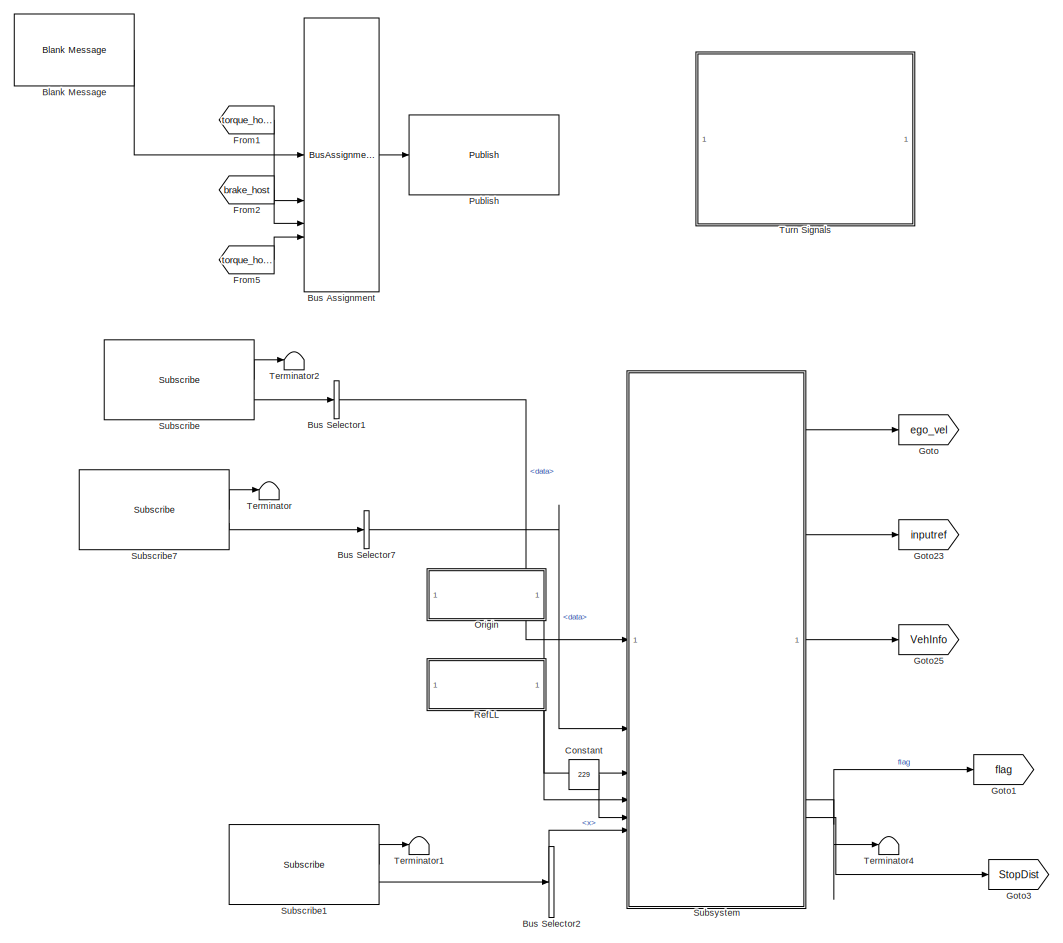
[diagram: root canvas - part 1/2, right side, full height]
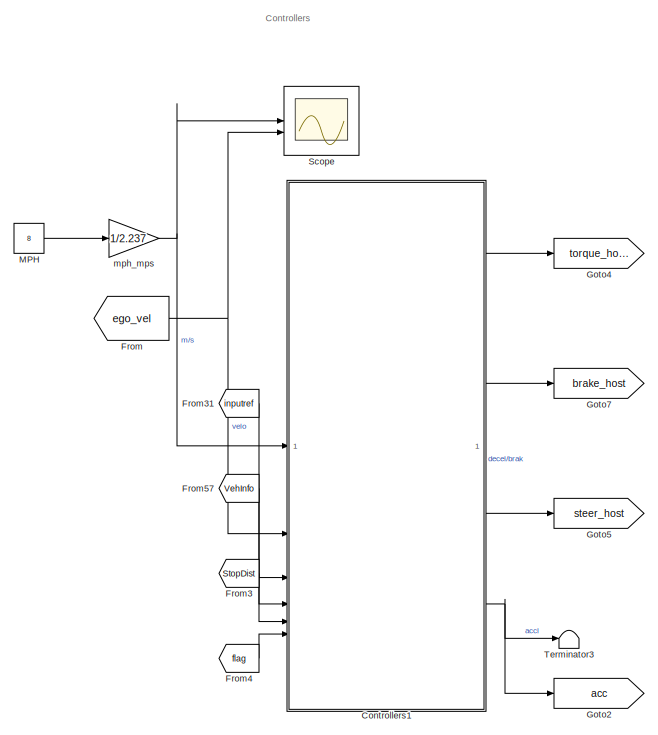
[diagram: root canvas - part 2/2, left side, full height]
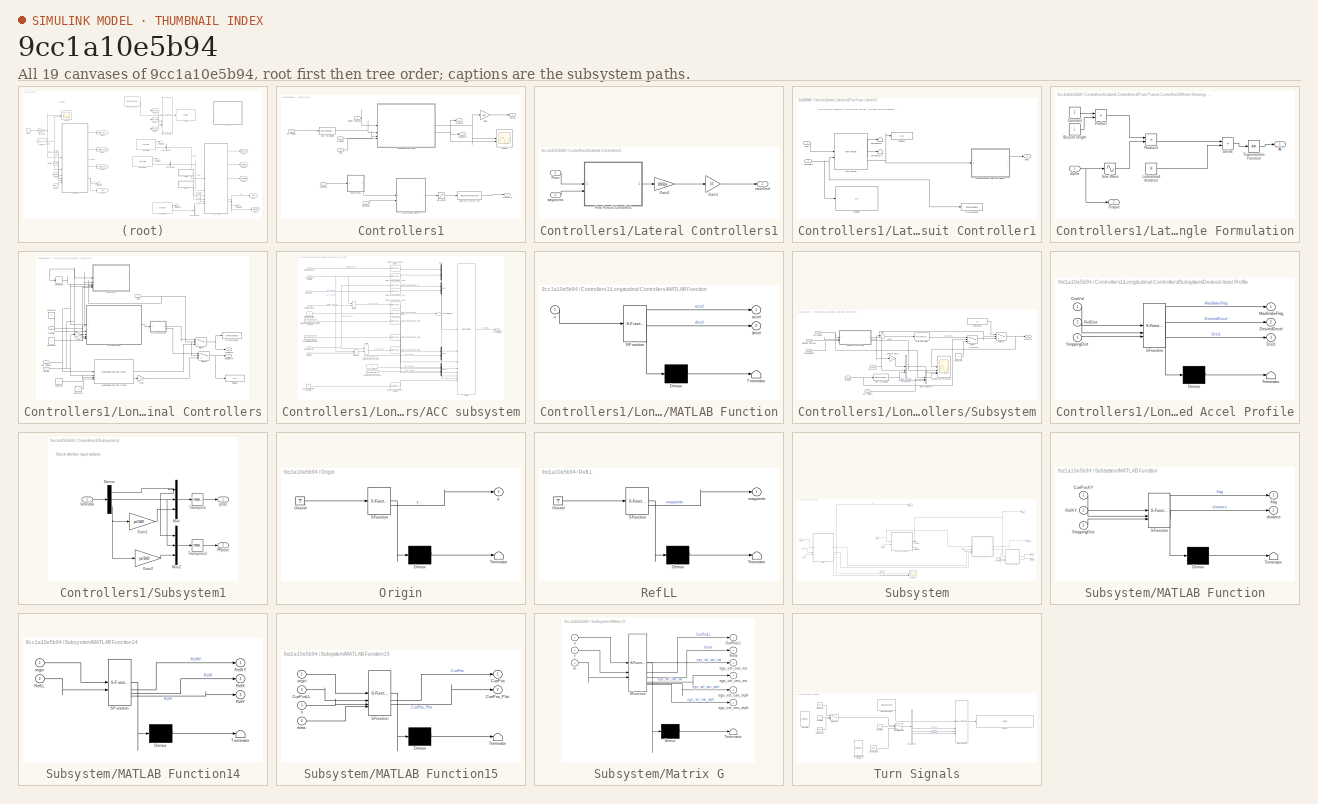
[diagram: thumbnail index - all 19 canvases of the model, root first then tree order]
MODEL slx_9cc1a10e5b94
KIND model
CONFIG AbsTol = auto
CONFIG EnableMultiTasking = off
CONFIG FixedStep = 0.01
CONFIG MaxStep = auto
CONFIG MinStep = auto
CONFIG RelTol = 1e-3
CONFIG SampleTimeConstraint = Unconstrained
CONFIG SolverName = FixedStepAuto
CONFIG StartTime = 0.0
CONFIG StopTime = inf
BLOCK [Reference] Blank Message  REF=ros2lib/Blank Message  (lib defined in slx_3c1549211f48)
  LibrarySourceBlock = roslib/ROS 2/Blank Message
  SourceBlock = ros2lib/Blank Message
  SourceType = ROS2 Blank Message
BLOCK [BusAssignment] Bus Assignment
  AssignedSignals = x,y,z
BLOCK [BusSelector] Bus Selector1
  OutputSignals = data
BLOCK [BusSelector] Bus Selector2
  OutputSignals = x,y
BLOCK [BusSelector] Bus Selector7
  OutputSignals = data
BLOCK [Constant] Constant
  Value = 229
BLOCK [SubSystem] Controllers1
BLOCK [Outport] Controllers1/AccelCmd
  Port = 4
BLOCK [DataTypeConversion] Controllers1/Cast To Double
  OutDataTypeStr = double
  RndMeth = Floor
  SaturateOnIntegerOverflow = off
BLOCK [Inport] Controllers1/CurrVelocity
  Port = 2
BLOCK [Outport] Controllers1/DecelCmd
  Port = 2
BLOCK [DiscreteTransferFcn] Controllers1/Discrete Transfer Fcn
  Denominator = [1 -1.8952 0.90129]
  InputPortMap = u0
  Numerator = [0.0015186 0.0030372 0.0015186]
  SampleTime = 0.01
BLOCK [Gain] Controllers1/Gain2
  Gain = 800
BLOCK [SubSystem] Controllers1/Lateral Controllers1
BLOCK [Gain] Controllers1/Lateral Controllers1/Gain1
  Gain = 16
BLOCK [Gain] Controllers1/Lateral Controllers1/Gain2
  Gain = 180/pi
BLOCK [Inport] Controllers1/Lateral Controllers1/Pose
BLOCK [SubSystem] Controllers1/Lateral Controllers1/Pure Pursuit Controller1
BLOCK [Display] Controllers1/Lateral Controllers1/Pure Pursuit Controller1/Display
  Decimation = 1
BLOCK [Display] Controllers1/Lateral Controllers1/Pure Pursuit Controller1/Display1
  Decimation = 1
BLOCK [Inport] Controllers1/Lateral Controllers1/Pure Pursuit Controller1/Pose
BLOCK [Reference] Controllers1/Lateral Controllers1/Pure Pursuit Controller1/Pure Pursuit  REF=robotalgslib/Pure Pursuit
  SourceBlock = robotalgslib/Pure Pursuit
  SourceType = nav.slalgs.internal.PurePursuit
BLOCK [Terminator] Controllers1/Lateral Controllers1/Pure Pursuit Controller1/Terminator6
BLOCK [Terminator] Controllers1/Lateral Controllers1/Pure Pursuit Controller1/Terminator7
BLOCK [ToWorkspace] Controllers1/Lateral Controllers1/Pure Pursuit Controller1/To Workspace
  FixptAsFi = on
  MaxDataPoints = inf
  SampleTime = -1
  SaveFormat = Timeseries
  VariableName = simout
BLOCK [Inport] Controllers1/Lateral Controllers1/Pure Pursuit Controller1/Waypoints
  Port = 2
BLOCK [SubSystem] Controllers1/Lateral Controllers1/Pure Pursuit Controller1/Wheel Steering Angle Formulation
BLOCK [Outport] Controllers1/Lateral Controllers1/Pure Pursuit Controller1/Wheel Steering Angle Formulation/Al
BLOCK [Constant] Controllers1/Lateral Controllers1/Pure Pursuit Controller1/Wheel Steering Angle Formulation/Bicycle length
  Value = L
BLOCK [Constant] Controllers1/Lateral Controllers1/Pure Pursuit Controller1/Wheel Steering Angle Formulation/Constant
  Value = 2
BLOCK [Product] Controllers1/Lateral Controllers1/Pure Pursuit Controller1/Wheel Steering Angle Formulation/Divide
  Inputs = */
BLOCK [Constant] Controllers1/Lateral Controllers1/Pure Pursuit Controller1/Wheel Steering Angle Formulation/Lookahead distance
  Value = ld
BLOCK [Outport] Controllers1/Lateral Controllers1/Pure Pursuit Controller1/Wheel Steering Angle Formulation/Output
  Port = 2
BLOCK [Product] Controllers1/Lateral Controllers1/Pure Pursuit Controller1/Wheel Steering Angle Formulation/Product
BLOCK [Product] Controllers1/Lateral Controllers1/Pure Pursuit Controller1/Wheel Steering Angle Formulation/Product1
BLOCK [Sin] Controllers1/Lateral Controllers1/Pure Pursuit Controller1/Wheel Steering Angle Formulation/Sine Wave
  SampleTime = 0
  TimeSource = Use external signal
BLOCK [Trigonometry] Controllers1/Lateral Controllers1/Pure Pursuit Controller1/Wheel Steering Angle Formulation/Trigonometric Function
  Operator = atan
BLOCK [Inport] Controllers1/Lateral Controllers1/Pure Pursuit Controller1/Wheel Steering Angle Formulation/alpha
  NameLocation = top
BLOCK [Outport] Controllers1/Lateral Controllers1/Pure Pursuit Controller1/delta
BLOCK [Outport] Controllers1/Lateral Controllers1/steerCmd
BLOCK [Inport] Controllers1/Lateral Controllers1/waypoints
  Port = 2
BLOCK [SubSystem] Controllers1/Longitudinal Controllers
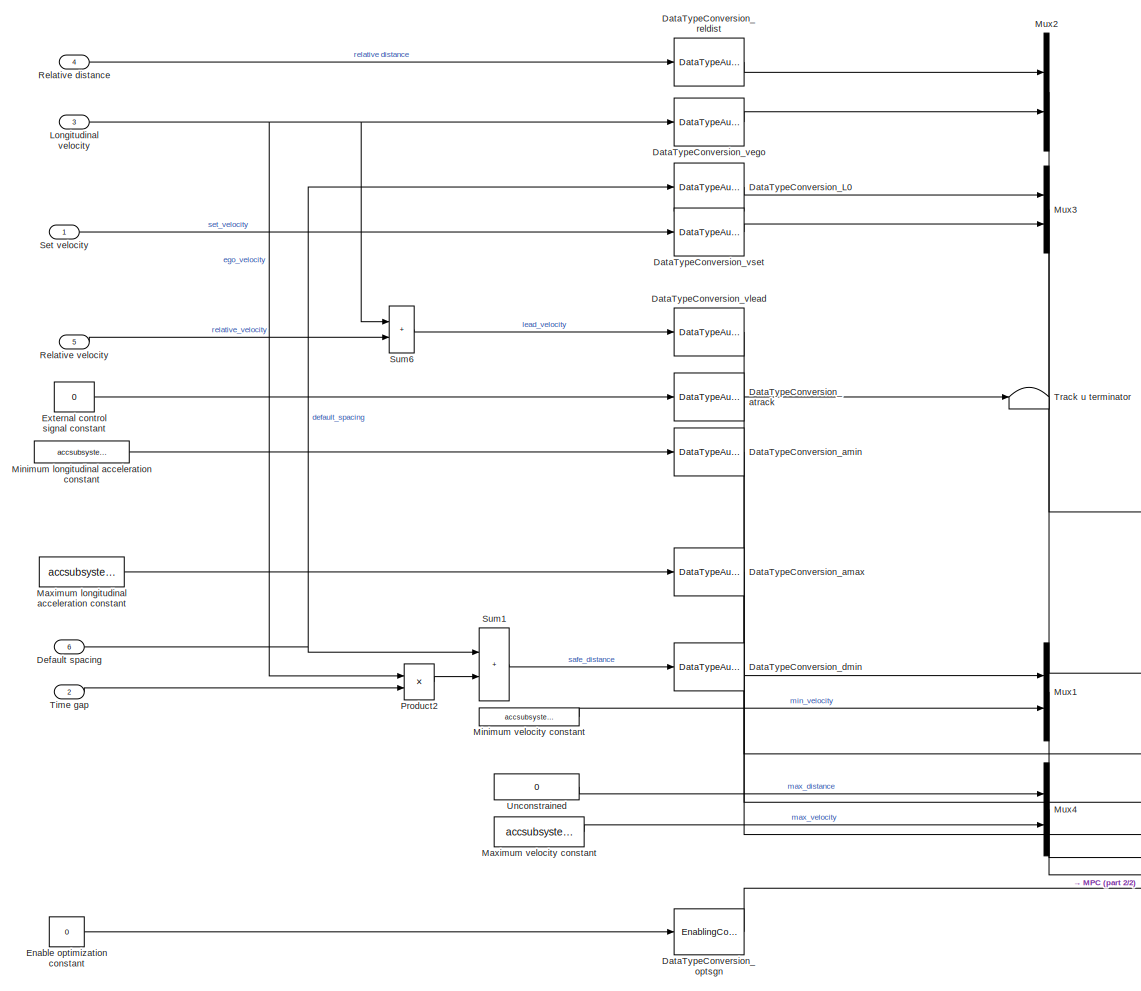
[diagram: Controllers1/Longitudinal Controllers/ACC subsystem - part 1/2, most of the canvas]
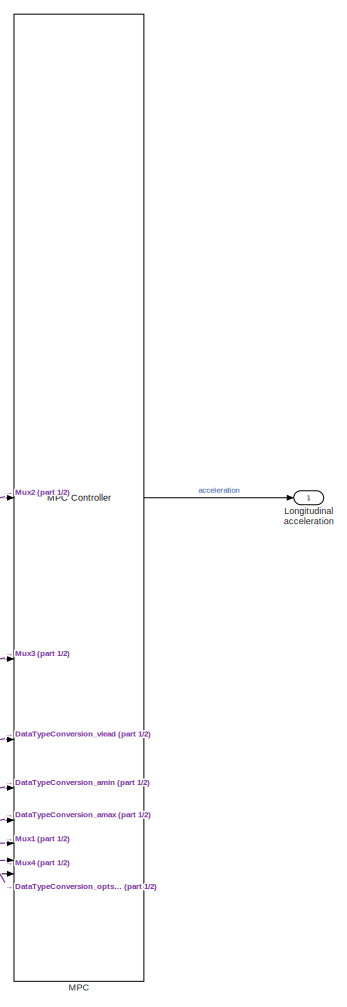
[diagram: Controllers1/Longitudinal Controllers/ACC subsystem - part 2/2, right side, full height]
BLOCK [SubSystem] Controllers1/Longitudinal Controllers/ACC subsystem
  LibrarySourceBlock = mpclib/Automated Driving/Adaptive Cruise Control System
BLOCK [Reference] Controllers1/Longitudinal Controllers/ACC subsystem/DataTypeConversion_L0  REF=mpcsigdimcheck_private/DataTypeAutoConversion
  LibrarySourceBlock = mpclib/Automated Driving/Adaptive Cruise Control System/DataTypeConversion_L0
  SourceBlock = mpcsigdimcheck_private/DataTypeAutoConversion
  SourceType = MPCDataTypeAutoConversion
BLOCK [Reference] Controllers1/Longitudinal Controllers/ACC subsystem/DataTypeConversion_amax  REF=mpcsigdimcheck_private/DataTypeAutoConversion
  LibrarySourceBlock = mpclib/Automated Driving/Adaptive Cruise Control System/DataTypeConversion_amax
  SourceBlock = mpcsigdimcheck_private/DataTypeAutoConversion
  SourceType = MPCDataTypeAutoConversion
BLOCK [Reference] Controllers1/Longitudinal Controllers/ACC subsystem/DataTypeConversion_amin  REF=mpcsigdimcheck_private/DataTypeAutoConversion
  LibrarySourceBlock = mpclib/Automated Driving/Adaptive Cruise Control System/DataTypeConversion_amin
  SourceBlock = mpcsigdimcheck_private/DataTypeAutoConversion
  SourceType = MPCDataTypeAutoConversion
BLOCK [Reference] Controllers1/Longitudinal Controllers/ACC subsystem/DataTypeConversion_atrack  REF=mpcsigdimcheck_private/DataTypeAutoConversion
  LibrarySourceBlock = mpclib/Automated Driving/Adaptive Cruise Control System/DataTypeConversion_atrack
  SourceBlock = mpcsigdimcheck_private/DataTypeAutoConversion
  SourceType = MPCDataTypeAutoConversion
BLOCK [Reference] Controllers1/Longitudinal Controllers/ACC subsystem/DataTypeConversion_dmin  REF=mpcsigdimcheck_private/DataTypeAutoConversion
  LibrarySourceBlock = mpclib/Automated Driving/Adaptive Cruise Control System/DataTypeConversion_dmin
  SourceBlock = mpcsigdimcheck_private/DataTypeAutoConversion
  SourceType = MPCDataTypeAutoConversion
BLOCK [Reference] Controllers1/Longitudinal Controllers/ACC subsystem/DataTypeConversion_optsgn  REF=mpcsigdimcheck_private/EnablingConversion
  LibrarySourceBlock = mpclib/Automated Driving/Adaptive Cruise Control System/DataTypeConversion_optsgn
  SourceBlock = mpcsigdimcheck_private/EnablingConversion
  SourceType = SubSystem
BLOCK [Reference] Controllers1/Longitudinal Controllers/ACC subsystem/DataTypeConversion_reldist  REF=mpcsigdimcheck_private/DataTypeAutoConversion
  LibrarySourceBlock = mpclib/Automated Driving/Adaptive Cruise Control System/DataTypeConversion_reldist
  SourceBlock = mpcsigdimcheck_private/DataTypeAutoConversion
  SourceType = MPCDataTypeAutoConversion
BLOCK [Reference] Controllers1/Longitudinal Controllers/ACC subsystem/DataTypeConversion_vego  REF=mpcsigdimcheck_private/DataTypeAutoConversion
  LibrarySourceBlock = mpclib/Automated Driving/Adaptive Cruise Control System/DataTypeConversion_vego
  SourceBlock = mpcsigdimcheck_private/DataTypeAutoConversion
  SourceType = MPCDataTypeAutoConversion
BLOCK [Reference] Controllers1/Longitudinal Controllers/ACC subsystem/DataTypeConversion_vlead  REF=mpcsigdimcheck_private/DataTypeAutoConversion
  LibrarySourceBlock = mpclib/Automated Driving/Adaptive Cruise Control System/DataTypeConversion_vlead
  SourceBlock = mpcsigdimcheck_private/DataTypeAutoConversion
  SourceType = MPCDataTypeAutoConversion
BLOCK [Reference] Controllers1/Longitudinal Controllers/ACC subsystem/DataTypeConversion_vset  REF=mpcsigdimcheck_private/DataTypeAutoConversion
  LibrarySourceBlock = mpclib/Automated Driving/Adaptive Cruise Control System/DataTypeConversion_vset
  SourceBlock = mpcsigdimcheck_private/DataTypeAutoConversion
  SourceType = MPCDataTypeAutoConversion
BLOCK [Inport] Controllers1/Longitudinal Controllers/ACC subsystem/Default spacing
  Port = 6
BLOCK [Constant] Controllers1/Longitudinal Controllers/ACC subsystem/Enable optimization constant
  OutDataTypeStr = accsubsystem_1_data.DataType
  Value = 0
BLOCK [Constant] Controllers1/Longitudinal Controllers/ACC subsystem/External control signal constant
  OutDataTypeStr = accsubsystem_1_data.DataType
  Value = 0
BLOCK [Outport] Controllers1/Longitudinal Controllers/ACC subsystem/Longitudinal acceleration
  PortDimensions = 1
  SamplingMode = Sample based
  SignalType = real
  VectorParamsAs1DForOutWhenUnconnected = off
BLOCK [Inport] Controllers1/Longitudinal Controllers/ACC subsystem/Longitudinal velocity
  Port = 3
BLOCK [Reference] Controllers1/Longitudinal Controllers/ACC subsystem/MPC  REF=mpclib/MPC Controller  (lib defined in mdl_ae329e0e0455)
  LibrarySourceBlock = mpclib/Automated Driving/Adaptive Cruise Control System/MPC
  SCDEnableBlockLinearizationSpecification = on
  SourceBlock = mpclib/MPC Controller
  SourceType = MPC
BLOCK [Constant] Controllers1/Longitudinal Controllers/ACC subsystem/Maximum longitudinal acceleration constant
  OutDataTypeStr = accsubsystem_1_data.DataType
  Value = accsubsystem_1_data.MaxAcceleration
BLOCK [Constant] Controllers1/Longitudinal Controllers/ACC subsystem/Maximum velocity constant
  OutDataTypeStr = accsubsystem_1_data.DataType
  Value = accsubsystem_1_data.MaxVelocity
BLOCK [Constant] Controllers1/Longitudinal Controllers/ACC subsystem/Minimum longitudinal acceleration constant
  OutDataTypeStr = accsubsystem_1_data.DataType
  Value = accsubsystem_1_data.MinAcceleration
BLOCK [Constant] Controllers1/Longitudinal Controllers/ACC subsystem/Minimum velocity constant
  OutDataTypeStr = accsubsystem_1_data.DataType
  Value = accsubsystem_1_data.MinVelocity
BLOCK [Mux] Controllers1/Longitudinal Controllers/ACC subsystem/Mux1
  DisplayOption = bar
  Inputs = [1 1]
BLOCK [Mux] Controllers1/Longitudinal Controllers/ACC subsystem/Mux2
  DisplayOption = bar
  Inputs = [1 1]
BLOCK [Mux] Controllers1/Longitudinal Controllers/ACC subsystem/Mux3
  DisplayOption = bar
  Inputs = [1 1]
BLOCK [Mux] Controllers1/Longitudinal Controllers/ACC subsystem/Mux4
  DisplayOption = bar
  Inputs = [1 1]
BLOCK [Product] Controllers1/Longitudinal Controllers/ACC subsystem/Product2
BLOCK [Inport] Controllers1/Longitudinal Controllers/ACC subsystem/Relative distance
  Port = 4
BLOCK [Inport] Controllers1/Longitudinal Controllers/ACC subsystem/Relative velocity
  Port = 5
BLOCK [Inport] Controllers1/Longitudinal Controllers/ACC subsystem/Set velocity
BLOCK [Sum] Controllers1/Longitudinal Controllers/ACC subsystem/Sum1
  IconShape = rectangular
BLOCK [Sum] Controllers1/Longitudinal Controllers/ACC subsystem/Sum6
  IconShape = rectangular
BLOCK [Inport] Controllers1/Longitudinal Controllers/ACC subsystem/Time gap
  Port = 2
BLOCK [Terminator] Controllers1/Longitudinal Controllers/ACC subsystem/Track u terminator
BLOCK [Constant] Controllers1/Longitudinal Controllers/ACC subsystem/Unconstrained
  OutDataTypeStr = accsubsystem_1_data.DataType
  Value = 0
BLOCK [Outport] Controllers1/Longitudinal Controllers/AccelCmd
BLOCK [Constant] Controllers1/Longitudinal Controllers/Constant
BLOCK [Constant] Controllers1/Longitudinal Controllers/Constant1
  Value = 0
BLOCK [Constant] Controllers1/Longitudinal Controllers/Constant2
BLOCK [Constant] Controllers1/Longitudinal Controllers/Constant3
  Value = 0
BLOCK [Inport] Controllers1/Longitudinal Controllers/CurrVel
  Port = 2
BLOCK [Outport] Controllers1/Longitudinal Controllers/DecelCmd
  Port = 2
BLOCK [Derivative] Controllers1/Longitudinal Controllers/Derivative
  Commented = on
BLOCK [Display] Controllers1/Longitudinal Controllers/Display1
  Decimation = 1
BLOCK [Gain] Controllers1/Longitudinal Controllers/Gain
  Gain = -1
BLOCK [Gain] Controllers1/Longitudinal Controllers/Gain1
  Gain = -1
BLOCK [Reference] Controllers1/Longitudinal Controllers/Longitudinal Controller Stanley  REF=drivingvehiclecontroller/Longitudinal Controller Stanley
  SourceBlock = drivingvehiclecontroller/Longitudinal Controller Stanley
  SourceType = Longitudinal Controller Stanley
BLOCK [SubSystem] Controllers1/Longitudinal Controllers/MATLAB Function
  ErrorFcn = Stateflow.Translate.translate
  PermitHierarchicalResolution = ExplicitOnly
  SFBlockType = MATLAB Function
  TreatAsAtomicUnit = on
BLOCK [Demux] Controllers1/Longitudinal Controllers/MATLAB Function/ Demux 
  Outputs = 1
BLOCK [S-Function] Controllers1/Longitudinal Controllers/MATLAB Function/ SFunction 
  EnableBusSupport = on
  FunctionName = sf_sfun
  PortCounts = [1 3]
  SFcnIsStateOwnerBlock = off
  SFunctionDeploymentMode = off
  Tag = Stateflow S-Function 43
BLOCK [Terminator] Controllers1/Longitudinal Controllers/MATLAB Function/ Terminator 
BLOCK [Outport] Controllers1/Longitudinal Controllers/MATLAB Function/accel
  VectorParamsAs1DForOutWhenUnconnected = off
BLOCK [Outport] Controllers1/Longitudinal Controllers/MATLAB Function/decel
  Port = 2
BLOCK [Inport] Controllers1/Longitudinal Controllers/MATLAB Function/u
BLOCK [Inport] Controllers1/Longitudinal Controllers/Set velocity
BLOCK [Inport] Controllers1/Longitudinal Controllers/StopDist
  Port = 3
BLOCK [SubSystem] Controllers1/Longitudinal Controllers/Subsystem
  Commented = on
BLOCK [Outport] Controllers1/Longitudinal Controllers/Subsystem/BrakeCm
BLOCK [Inport] Controllers1/Longitudinal Controllers/Subsystem/Braking 
  Port = 4
BLOCK [Scope] Controllers1/Longitudinal Controllers/Subsystem/Braking Performance
  Floating = off
  NumInputPorts = 4
  ScopeSpecificationString = Simulink.scopes.TimeScopeBlockCfg('CurrentConfiguration', extmgr.ConfigurationSet(extmgr.Configuration('Core','General UI',true,'FigureColor',[0 0 0]),extmgr.Configuration('Core','Source UI',true),extmgr.Configuration('Sources','WiredSimulink',true,'DataLoggingVariableName','ScopeData1'),extmgr.Configuration('Visuals','Time Domain',true,'SerializedDisplays',{struct('MinYLimReal','-3686.2875','MaxY...<+4331ch>
BLOCK [BusCreator] Controllers1/Longitudinal Controllers/Subsystem/Bus Creator
  DisplayOption = bar
  InheritFromInputs = on
  Inputs = 3
BLOCK [BusCreator] Controllers1/Longitudinal Controllers/Subsystem/Bus Creator1
  DisplayOption = bar
  InheritFromInputs = on
  Inputs = 3
BLOCK [DataTypeConversion] Controllers1/Longitudinal Controllers/Subsystem/Cast To Double
  OutDataTypeStr = double
  RndMeth = Floor
  SaturateOnIntegerOverflow = off
BLOCK [Constant] Controllers1/Longitudinal Controllers/Subsystem/Constant
  Value = 0
BLOCK [Constant] Controllers1/Longitudinal Controllers/Subsystem/Constant1
  Value = -3
BLOCK [Inport] Controllers1/Longitudinal Controllers/Subsystem/CurrAccel
  Port = 3
BLOCK [Inport] Controllers1/Longitudinal Controllers/Subsystem/CurrVelocity
BLOCK [SubSystem] Controllers1/Longitudinal Controllers/Subsystem/Desired Accel Profile
  ErrorFcn = Stateflow.Translate.translate
  LibrarySourceBlock = simulink/User-Defined\nFunctions/MATLAB Function
  PermitHierarchicalResolution = ExplicitOnly
  SFBlockType = MATLAB Function
  TreatAsAtomicUnit = on
BLOCK [Demux] Controllers1/Longitudinal Controllers/Subsystem/Desired Accel Profile/ Demux 
  Outputs = 1
BLOCK [S-Function] Controllers1/Longitudinal Controllers/Subsystem/Desired Accel Profile/ SFunction 
  EnableBusSupport = on
  FunctionName = sf_sfun
  PortCounts = [3 4]
  SFcnIsStateOwnerBlock = off
  SFunctionDeploymentMode = off
  Tag = Stateflow S-Function 44
BLOCK [Terminator] Controllers1/Longitudinal Controllers/Subsystem/Desired Accel Profile/ Terminator 
BLOCK [Inport] Controllers1/Longitudinal Controllers/Subsystem/Desired Accel Profile/CurrVel
BLOCK [Outport] Controllers1/Longitudinal Controllers/Subsystem/Desired Accel Profile/DesiredDecel
  Port = 2
BLOCK [Outport] Controllers1/Longitudinal Controllers/Subsystem/Desired Accel Profile/Dist1
  Port = 3
BLOCK [Outport] Controllers1/Longitudinal Controllers/Subsystem/Desired Accel Profile/MaxBrakeFlag
BLOCK [Inport] Controllers1/Longitudinal Controllers/Subsystem/Desired Accel Profile/RelDist
  Port = 2
BLOCK [Inport] Controllers1/Longitudinal Controllers/Subsystem/Desired Accel Profile/StoppingDist
  Port = 3
BLOCK [Gain] Controllers1/Longitudinal Controllers/Subsystem/Desired Decel
  Gain = -1
BLOCK [Reference] Controllers1/Longitudinal Controllers/Subsystem/PID Controller  REF=slpidlib/PID Controller
  LibrarySourceBlock = simulink/Continuous/PID Controller
  SourceBlock = slpidlib/PID Controller
  SourceType = PID 1dof
BLOCK [Inport] Controllers1/Longitudinal Controllers/Subsystem/Relative Distance
  Port = 2
BLOCK [Inport] Controllers1/Longitudinal Controllers/Subsystem/Set Velocity
  Port = 5
BLOCK [Inport] Controllers1/Longitudinal Controllers/Subsystem/StoppingDist
  Port = 6
BLOCK [Sum] Controllers1/Longitudinal Controllers/Subsystem/Sum
  Inputs = |+-
BLOCK [Switch] Controllers1/Longitudinal Controllers/Subsystem/Switch
  Criteria = u2 > Threshold
  InputSameDT = off
  SaturateOnIntegerOverflow = off
BLOCK [Switch] Controllers1/Longitudinal Controllers/Subsystem/Switch1
  Criteria = u2 > Threshold
  InputSameDT = off
  NameLocation = top
  SaturateOnIntegerOverflow = off
BLOCK [Switch] Controllers1/Longitudinal Controllers/Switch
  Criteria = u2 > Threshold
  InputSameDT = off
  SaturateOnIntegerOverflow = off
BLOCK [Switch] Controllers1/Longitudinal Controllers/Switch1
  Criteria = u2 > Threshold
  InputSameDT = off
  SaturateOnIntegerOverflow = off
BLOCK [ToWorkspace] Controllers1/Longitudinal Controllers/To Workspace
  FixptAsFi = on
  MaxDataPoints = inf
  SampleTime = -1
  SaveFormat = Timeseries
  VariableName = simout4
BLOCK [Inport] Controllers1/Longitudinal Controllers/flag
  Port = 4
BLOCK [Inport] Controllers1/RefPoses
  Port = 3
BLOCK [Saturate] Controllers1/Saturation
  LinearizeAsGain = off
  LowerLimit = -540
  UpperLimit = 540
BLOCK [Scope] Controllers1/Scope2
  Floating = off
  NumInputPorts = 2
  ScopeSpecificationString = Simulink.scopes.TimeScopeBlockCfg('CurrentConfiguration', extmgr.ConfigurationSet(extmgr.Configuration('Core','General UI',true),extmgr.Configuration('Core','Source UI',true),extmgr.Configuration('Sources','WiredSimulink',true,'DataLoggingVariableName','ScopeData1'),extmgr.Configuration('Visuals','Time Domain',true,'SerializedDisplays',{struct('MinYLimReal','-0.3125','MaxYLimReal','2.8125','YLabel...<+1462ch>
BLOCK [Outport] Controllers1/SteerCmd
  Port = 3
BLOCK [Inport] Controllers1/StopDist
  Port = 5
BLOCK [SubSystem] Controllers1/Subsystem1
  NameLocation = top
BLOCK [Demux] Controllers1/Subsystem1/Demux
  Outputs = 3
BLOCK [Gain] Controllers1/Subsystem1/Gain1
  Gain = pi/180
BLOCK [Gain] Controllers1/Subsystem1/Gain2
  Gain = pi/180
BLOCK [Mux] Controllers1/Subsystem1/Mux
  DisplayOption = bar
  Inputs = 3
BLOCK [Mux] Controllers1/Subsystem1/Mux2
  DisplayOption = bar
  Inputs = 3
BLOCK [Outport] Controllers1/Subsystem1/PPpose
  Port = 2
BLOCK [Math] Controllers1/Subsystem1/Transpose
  Operator = transpose
  SignedPower = on
BLOCK [Math] Controllers1/Subsystem1/Transpose2
  Operator = transpose
  SignedPower = on
BLOCK [Inport] Controllers1/Subsystem1/VehFdbk
BLOCK [Outport] Controllers1/Subsystem1/pose
BLOCK [Outport] Controllers1/Torque
BLOCK [Inport] Controllers1/VehFdbk
  Port = 4
BLOCK [Inport] Controllers1/flag
  Port = 6
BLOCK [Inport] Controllers1/velocity desired
BLOCK [From] From
  GotoTag = ego_vel
  TagVisibility = global
BLOCK [From] From1
  GotoTag = torque_host
  TagVisibility = global
BLOCK [From] From2
  GotoTag = brake_host
  TagVisibility = global
BLOCK [From] From3
  GotoTag = StopDist
  TagVisibility = global
BLOCK [From] From31
  GotoTag = inputref
  TagVisibility = global
BLOCK [From] From4
  GotoTag = flag
  TagVisibility = global
BLOCK [From] From5
  GotoTag = torque_host
  TagVisibility = global
BLOCK [From] From57
  GotoTag = VehInfo
  TagVisibility = global
BLOCK [Goto] Goto
  GotoTag = ego_vel
  TagVisibility = global
BLOCK [Goto] Goto1
  GotoTag = flag
  TagVisibility = global
BLOCK [Goto] Goto2
  GotoTag = acc
  TagVisibility = global
BLOCK [Goto] Goto23
  GotoTag = inputref
  TagVisibility = global
BLOCK [Goto] Goto25
  GotoTag = VehInfo
  TagVisibility = global
BLOCK [Goto] Goto3
  GotoTag = StopDist
  TagVisibility = global
BLOCK [Goto] Goto4
  GotoTag = torque_host
  TagVisibility = global
BLOCK [Goto] Goto5
  GotoTag = steer_host
  TagVisibility = global
BLOCK [Goto] Goto7
  GotoTag = brake_host
  TagVisibility = global
BLOCK [Constant] MPH
  Value = 8
BLOCK [SubSystem] Origin
  ErrorFcn = Stateflow.Translate.translate
  LibrarySourceBlock = simulink/User-Defined\nFunctions/MATLAB Function
  PermitHierarchicalResolution = ExplicitOnly
  SFBlockType = MATLAB Function
  TreatAsAtomicUnit = on
BLOCK [Demux] Origin/ Demux 
  Outputs = 1
BLOCK [Ground] Origin/ Ground 
BLOCK [S-Function] Origin/ SFunction 
  EnableBusSupport = off
  FunctionName = sf_sfun
  PortCounts = [1 2]
  SFcnIsStateOwnerBlock = off
  SFunctionDeploymentMode = off
  Tag = Stateflow S-Function 2
BLOCK [Terminator] Origin/ Terminator 
BLOCK [Outport] Origin/y
BLOCK [Reference] Publish  REF=ros2lib/Publish  (lib defined in slx_3c1549211f48)
  LibrarySourceBlock = roslib/ROS 2/Publish
  SourceBlock = ros2lib/Publish
  SourceType = ROS2 Publish
BLOCK [SubSystem] RefLL
  ErrorFcn = Stateflow.Translate.translate
  LibrarySourceBlock = simulink/User-Defined\nFunctions/MATLAB Function
  PermitHierarchicalResolution = ExplicitOnly
  SFBlockType = MATLAB Function
  TreatAsAtomicUnit = on
BLOCK [Demux] RefLL/ Demux 
  Outputs = 1
BLOCK [Ground] RefLL/ Ground 
BLOCK [S-Function] RefLL/ SFunction 
  EnableBusSupport = off
  FunctionName = sf_sfun
  PortCounts = [1 2]
  SFcnIsStateOwnerBlock = off
  SFunctionDeploymentMode = off
  Tag = Stateflow S-Function 1
BLOCK [Terminator] RefLL/ Terminator 
BLOCK [Outport] RefLL/waypoints
BLOCK [Scope] Scope
  Floating = off
  NumInputPorts = 2
  ScopeSpecificationString = Simulink.scopes.TimeScopeBlockCfg('CurrentConfiguration', extmgr.ConfigurationSet(extmgr.Configuration('Core','General UI',true),extmgr.Configuration('Core','Source UI',true),extmgr.Configuration('Sources','WiredSimulink',true,'DataLoggingVariableName','ScopeData1'),extmgr.Configuration('Visuals','Time Domain',true,'SerializedDisplays',{struct('MinYLimReal','-0.44703','MaxYLimReal','4.02325','YLab...<+1469ch>
BLOCK [Reference] Subscribe  REF=ros2lib/Subscribe  (lib defined in slx_3c1549211f48)
  LibrarySourceBlock = roslib/ROS 2/Subscribe
  SourceBlock = ros2lib/Subscribe
  SourceType = ROS2 Subscribe
BLOCK [Reference] Subscribe1  REF=ros2lib/Subscribe  (lib defined in slx_3c1549211f48)
  LibrarySourceBlock = roslib/ROS 2/Subscribe
  SourceBlock = ros2lib/Subscribe
  SourceType = ROS2 Subscribe
BLOCK [Reference] Subscribe7  REF=ros2lib/Subscribe  (lib defined in slx_3c1549211f48)
  LibrarySourceBlock = roslib/ROS 2/Subscribe
  SourceBlock = ros2lib/Subscribe
  SourceType = ROS2 Subscribe
BLOCK [SubSystem] Subsystem
BLOCK [Inport] Subsystem/<data>
  Port = 2
BLOCK [Constant] Subsystem/Constant
  Value = 10
BLOCK [Constant] Subsystem/Constant1
  Value = 11
BLOCK [Outport] Subsystem/CurrPos
  Port = 3
BLOCK [SubSystem] Subsystem/MATLAB Function
  ErrorFcn = Stateflow.Translate.translate
  LibrarySourceBlock = simulink/User-Defined\nFunctions/MATLAB Function
  PermitHierarchicalResolution = ExplicitOnly
  SFBlockType = MATLAB Function
  TreatAsAtomicUnit = on
BLOCK [Demux] Subsystem/MATLAB Function/ Demux 
  Outputs = 1
BLOCK [S-Function] Subsystem/MATLAB Function/ SFunction 
  EnableBusSupport = off
  FunctionName = sf_sfun
  PortCounts = [3 3]
  SFcnIsStateOwnerBlock = off
  SFunctionDeploymentMode = off
  Tag = Stateflow S-Function 3
BLOCK [Terminator] Subsystem/MATLAB Function/ Terminator 
BLOCK [Inport] Subsystem/MATLAB Function/CurrPosXY
BLOCK [Inport] Subsystem/MATLAB Function/RefXY
  Port = 2
BLOCK [Inport] Subsystem/MATLAB Function/StoppingDist
  Port = 3
BLOCK [Outport] Subsystem/MATLAB Function/distance
  Port = 2
BLOCK [Outport] Subsystem/MATLAB Function/flag
BLOCK [SubSystem] Subsystem/MATLAB Function14
  ErrorFcn = Stateflow.Translate.translate
  LibrarySourceBlock = simulink/User-Defined\nFunctions/MATLAB Function
  PermitHierarchicalResolution = ExplicitOnly
  SFBlockType = MATLAB Function
  TreatAsAtomicUnit = on
BLOCK [Demux] Subsystem/MATLAB Function14/ Demux 
  Outputs = 1
BLOCK [S-Function] Subsystem/MATLAB Function14/ SFunction 
  EnableBusSupport = off
  FunctionName = sf_sfun
  PortCounts = [2 4]
  SFcnIsStateOwnerBlock = off
  SFunctionDeploymentMode = off
  Tag = Stateflow S-Function 36
BLOCK [Terminator] Subsystem/MATLAB Function14/ Terminator 
BLOCK [Inport] Subsystem/MATLAB Function14/RefLL
  Port = 2
BLOCK [Outport] Subsystem/MATLAB Function14/RefX
  Port = 2
BLOCK [Outport] Subsystem/MATLAB Function14/RefXY
BLOCK [Outport] Subsystem/MATLAB Function14/RefY
  Port = 3
BLOCK [Inport] Subsystem/MATLAB Function14/origin
BLOCK [SubSystem] Subsystem/MATLAB Function15
  ErrorFcn = Stateflow.Translate.translate
  LibrarySourceBlock = simulink/User-Defined\nFunctions/MATLAB Function
  PermitHierarchicalResolution = ExplicitOnly
  SFBlockType = MATLAB Function
  TreatAsAtomicUnit = on
BLOCK [Demux] Subsystem/MATLAB Function15/ Demux 
  Outputs = 1
BLOCK [S-Function] Subsystem/MATLAB Function15/ SFunction 
  EnableBusSupport = off
  FunctionName = sf_sfun
  PortCounts = [4 3]
  SFcnIsStateOwnerBlock = off
  SFunctionDeploymentMode = off
  Tag = Stateflow S-Function 37
BLOCK [Terminator] Subsystem/MATLAB Function15/ Terminator 
BLOCK [Outport] Subsystem/MATLAB Function15/CurrPos
BLOCK [Inport] Subsystem/MATLAB Function15/CurrPosLL
  Port = 2
BLOCK [Outport] Subsystem/MATLAB Function15/CurrPos_Plot
  Port = 2
BLOCK [Inport] Subsystem/MATLAB Function15/h
  Port = 3
BLOCK [Inport] Subsystem/MATLAB Function15/origin
BLOCK [Inport] Subsystem/MATLAB Function15/theta
  Port = 4
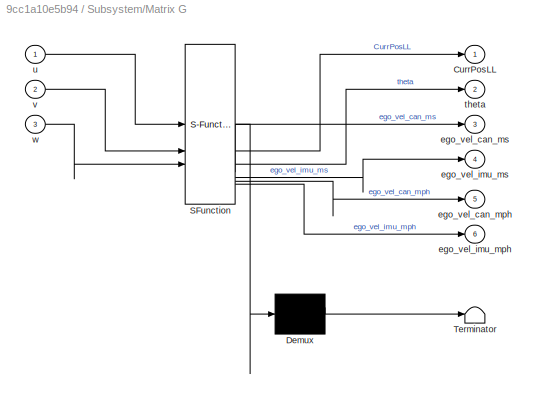
BLOCK [SubSystem] Subsystem/Matrix G
  ErrorFcn = Stateflow.Translate.translate
  LibrarySourceBlock = simulink/User-Defined\nFunctions/MATLAB Function
  PermitHierarchicalResolution = ExplicitOnly
  SFBlockType = MATLAB Function
  TreatAsAtomicUnit = on
BLOCK [Demux] Subsystem/Matrix G/ Demux 
  Outputs = 1
BLOCK [S-Function] Subsystem/Matrix G/ SFunction 
  EnableBusSupport = off
  FunctionName = sf_sfun
  PortCounts = [3 7]
  SFcnIsStateOwnerBlock = off
  SFunctionDeploymentMode = off
  Tag = Stateflow S-Function 13
BLOCK [Terminator] Subsystem/Matrix G/ Terminator 
BLOCK [Outport] Subsystem/Matrix G/CurrPosLL
BLOCK [Outport] Subsystem/Matrix G/ego_vel_can_mph
  Port = 5
BLOCK [Outport] Subsystem/Matrix G/ego_vel_can_ms
  Port = 3
BLOCK [Outport] Subsystem/Matrix G/ego_vel_imu_mph
  Port = 6
BLOCK [Outport] Subsystem/Matrix G/ego_vel_imu_ms
  Port = 4
BLOCK [Outport] Subsystem/Matrix G/theta
  Port = 2
BLOCK [Inport] Subsystem/Matrix G/u
BLOCK [Inport] Subsystem/Matrix G/v
  Port = 2
BLOCK [Inport] Subsystem/Matrix G/w
  Port = 3
BLOCK [Inport] Subsystem/RefLL
  Port = 4
BLOCK [Outport] Subsystem/RefXY
  Port = 2
BLOCK [Scope] Subsystem/Scope1
  Floating = off
  NumInputPorts = 3
  ScopeSpecificationString = Simulink.scopes.TimeScopeBlockCfg('CurrentConfiguration', extmgr.ConfigurationSet(extmgr.Configuration('Core','General UI',true),extmgr.Configuration('Core','Source UI',true),extmgr.Configuration('Sources','WiredSimulink',true,'DataLoggingVariableName','ScopeData1'),extmgr.Configuration('Visuals','Time Domain',true,'SerializedDisplays',{struct('MinYLimReal','-1.67888','MaxYLimReal','15.1099','YLab...<+1452ch>
BLOCK [Outport] Subsystem/StopDist
  Port = 5
BLOCK [Terminator] Subsystem/Terminator1
BLOCK [Terminator] Subsystem/Terminator2
BLOCK [Outport] Subsystem/ego_vel
BLOCK [Outport] Subsystem/flag
  Port = 4
BLOCK [Inport] Subsystem/h
  Port = 5
BLOCK [Inport] Subsystem/origin
  Port = 3
BLOCK [Inport] Subsystem/v
BLOCK [Inport] Subsystem/w
  Port = 6
BLOCK [Terminator] Terminator
BLOCK [Terminator] Terminator1
BLOCK [Terminator] Terminator2
BLOCK [Terminator] Terminator3
BLOCK [Terminator] Terminator4
BLOCK [SubSystem] Turn Signals
BLOCK [Reference] Turn Signals/Blank Message1  REF=ros2lib/Blank Message  (lib defined in slx_3c1549211f48)
  LibrarySourceBlock = roslib/ROS 2/Blank Message
  SourceBlock = ros2lib/Blank Message
  SourceType = ROS2 Blank Message
BLOCK [BusSelector] Turn Signals/Bus Selector
  OutputSignals = signal1,signal2,signal3
BLOCK [Constant] Turn Signals/Condition
BLOCK [Constant] Turn Signals/Condition1
BLOCK [Switch] Turn Signals/Hazard // Indicator
  AllowDiffInputSizes = on
  Criteria = u2 > Threshold
  InputSameDT = off
  SaturateOnIntegerOverflow = off
BLOCK [Constant] Turn Signals/Hazard Lights
  Value = [0 0 1]
BLOCK [ToggleSwitchBlock] Turn Signals/Hazard//Indicator Toggle
BLOCK [Switch] Turn Signals/L // R Indicator
  Criteria = u2 > Threshold
  InputSameDT = off
  SaturateOnIntegerOverflow = off
BLOCK [ToggleSwitchBlock] Turn Signals/L//R Toggle
BLOCK [BusAssignment] Turn Signals/L//R//Hazard Lights
  AssignedSignals = x,y,z
BLOCK [Constant] Turn Signals/Left Indicator
  Value = [1 0 0]
BLOCK [Reference] Turn Signals/Publish1  REF=ros2lib/Publish  (lib defined in slx_3c1549211f48)
  LibrarySourceBlock = roslib/ROS 2/Publish
  SourceBlock = ros2lib/Publish
  SourceType = ROS2 Publish
BLOCK [Constant] Turn Signals/Right Indicator
  Value = [0 1 0]
BLOCK [Gain] mph_mps
  Gain = 1/2.237
ANNOTATION (root): Controllers
ANNOTATION Controllers1/Lateral Controllers1/Pure Pursuit Controller1: The subsystem implements a Pure Pursuit controller. The "Pure Pursuit" block calculates the target direction and the "Wheel Steering Angle Formulation" block calculates the wheel steering angle.
ANNOTATION Controllers1/Subsystem1: Check whether input radians
LINE Blank Message:1 -> Bus Assignment:1
LINE Bus Assignment:1 -> Publish:1
LINE Bus Selector1:1 -> Subsystem:1
LINE Bus Selector2:1 -> Subsystem:6
LINE Bus Selector7:1 -> Subsystem:2
LINE Constant:1 -> Subsystem:5
LINE Controllers1/Cast To Double:1 -> Controllers1/Longitudinal Controllers:2
LINE Controllers1/CurrVelocity:1 -> Controllers1/Cast To Double:1
LINE Controllers1/Discrete Transfer Fcn:1 -> Controllers1/SteerCmd:1
LINE Controllers1/Gain2:1 -> Controllers1/Torque:1
LINE Controllers1/Lateral Controllers1/Gain1:1 -> Controllers1/Lateral Controllers1/steerCmd:1
LINE Controllers1/Lateral Controllers1/Gain2:1 -> Controllers1/Lateral Controllers1/Gain1:1
LINE Controllers1/Lateral Controllers1/Pose:1 -> Controllers1/Lateral Controllers1/Pure Pursuit Controller1:1
LINE Controllers1/Lateral Controllers1/Pure Pursuit Controller1/Pose:1 -> Controllers1/Lateral Controllers1/Pure Pursuit Controller1/Pure Pursuit:1
LINE Controllers1/Lateral Controllers1/Pure Pursuit Controller1/Pure Pursuit:1 -> Controllers1/Lateral Controllers1/Pure Pursuit Controller1/Terminator6:1
LINE Controllers1/Lateral Controllers1/Pure Pursuit Controller1/Pure Pursuit:2 -> Controllers1/Lateral Controllers1/Pure Pursuit Controller1/Terminator7:1
NET Controllers1/Lateral Controllers1/Pure Pursuit Controller1/Pure Pursuit:3 -> Controllers1/Lateral Controllers1/Pure Pursuit Controller1/Display1:1, Controllers1/Lateral Controllers1/Pure Pursuit Controller1/Wheel Steering Angle Formulation:1
NET Controllers1/Lateral Controllers1/Pure Pursuit Controller1/Waypoints:1 -> Controllers1/Lateral Controllers1/Pure Pursuit Controller1/Display:1, Controllers1/Lateral Controllers1/Pure Pursuit Controller1/Pure Pursuit:2, Controllers1/Lateral Controllers1/Pure Pursuit Controller1/To Workspace:1
LINE Controllers1/Lateral Controllers1/Pure Pursuit Controller1/Wheel Steering Angle Formulation/Bicycle length:1 -> Controllers1/Lateral Controllers1/Pure Pursuit Controller1/Wheel Steering Angle Formulation/Product:2
LINE Controllers1/Lateral Controllers1/Pure Pursuit Controller1/Wheel Steering Angle Formulation/Constant:1 -> Controllers1/Lateral Controllers1/Pure Pursuit Controller1/Wheel Steering Angle Formulation/Product:1
LINE Controllers1/Lateral Controllers1/Pure Pursuit Controller1/Wheel Steering Angle Formulation/Divide:1 -> Controllers1/Lateral Controllers1/Pure Pursuit Controller1/Wheel Steering Angle Formulation/Trigonometric Function:1
LINE Controllers1/Lateral Controllers1/Pure Pursuit Controller1/Wheel Steering Angle Formulation/Lookahead distance:1 -> Controllers1/Lateral Controllers1/Pure Pursuit Controller1/Wheel Steering Angle Formulation/Divide:2
LINE Controllers1/Lateral Controllers1/Pure Pursuit Controller1/Wheel Steering Angle Formulation/Product1:1 -> Controllers1/Lateral Controllers1/Pure Pursuit Controller1/Wheel Steering Angle Formulation/Divide:1
LINE Controllers1/Lateral Controllers1/Pure Pursuit Controller1/Wheel Steering Angle Formulation/Product:1 -> Controllers1/Lateral Controllers1/Pure Pursuit Controller1/Wheel Steering Angle Formulation/Product1:1
LINE Controllers1/Lateral Controllers1/Pure Pursuit Controller1/Wheel Steering Angle Formulation/Sine Wave:1 -> Controllers1/Lateral Controllers1/Pure Pursuit Controller1/Wheel Steering Angle Formulation/Product1:2
LINE Controllers1/Lateral Controllers1/Pure Pursuit Controller1/Wheel Steering Angle Formulation/Trigonometric Function:1 -> Controllers1/Lateral Controllers1/Pure Pursuit Controller1/Wheel Steering Angle Formulation/Al:1
NET Controllers1/Lateral Controllers1/Pure Pursuit Controller1/Wheel Steering Angle Formulation/alpha:1 -> Controllers1/Lateral Controllers1/Pure Pursuit Controller1/Wheel Steering Angle Formulation/Output:1, Controllers1/Lateral Controllers1/Pure Pursuit Controller1/Wheel Steering Angle Formulation/Sine Wave:1
LINE Controllers1/Lateral Controllers1/Pure Pursuit Controller1/Wheel Steering Angle Formulation:1 -> Controllers1/Lateral Controllers1/Pure Pursuit Controller1/delta:1
LINE Controllers1/Lateral Controllers1/Pure Pursuit Controller1:1 -> Controllers1/Lateral Controllers1/Gain2:1
LINE Controllers1/Lateral Controllers1/waypoints:1 -> Controllers1/Lateral Controllers1/Pure Pursuit Controller1:2
LINE Controllers1/Lateral Controllers1:1 -> Controllers1/Saturation:1
LINE Controllers1/Longitudinal Controllers/ACC subsystem/DataTypeConversion_L0:1 -> Controllers1/Longitudinal Controllers/ACC subsystem/Mux3:1
LINE Controllers1/Longitudinal Controllers/ACC subsystem/DataTypeConversion_amax:1 -> Controllers1/Longitudinal Controllers/ACC subsystem/MPC:5
LINE Controllers1/Longitudinal Controllers/ACC subsystem/DataTypeConversion_amin:1 -> Controllers1/Longitudinal Controllers/ACC subsystem/MPC:4
LINE Controllers1/Longitudinal Controllers/ACC subsystem/DataTypeConversion_atrack:1 -> Controllers1/Longitudinal Controllers/ACC subsystem/Track u terminator:1
LINE Controllers1/Longitudinal Controllers/ACC subsystem/DataTypeConversion_dmin:1 -> Controllers1/Longitudinal Controllers/ACC subsystem/Mux1:1
LINE Controllers1/Longitudinal Controllers/ACC subsystem/DataTypeConversion_optsgn:1 -> Controllers1/Longitudinal Controllers/ACC subsystem/MPC:8
LINE Controllers1/Longitudinal Controllers/ACC subsystem/DataTypeConversion_reldist:1 -> Controllers1/Longitudinal Controllers/ACC subsystem/Mux2:1
LINE Controllers1/Longitudinal Controllers/ACC subsystem/DataTypeConversion_vego:1 -> Controllers1/Longitudinal Controllers/ACC subsystem/Mux2:2
LINE Controllers1/Longitudinal Controllers/ACC subsystem/DataTypeConversion_vlead:1 -> Controllers1/Longitudinal Controllers/ACC subsystem/MPC:3
LINE Controllers1/Longitudinal Controllers/ACC subsystem/DataTypeConversion_vset:1 -> Controllers1/Longitudinal Controllers/ACC subsystem/Mux3:2
NET Controllers1/Longitudinal Controllers/ACC subsystem/Default spacing:1 -> Controllers1/Longitudinal Controllers/ACC subsystem/DataTypeConversion_L0:1, Controllers1/Longitudinal Controllers/ACC subsystem/Sum1:1
LINE Controllers1/Longitudinal Controllers/ACC subsystem/Enable optimization constant:1 -> Controllers1/Longitudinal Controllers/ACC subsystem/DataTypeConversion_optsgn:1
LINE Controllers1/Longitudinal Controllers/ACC subsystem/External control signal constant:1 -> Controllers1/Longitudinal Controllers/ACC subsystem/DataTypeConversion_atrack:1
NET Controllers1/Longitudinal Controllers/ACC subsystem/Longitudinal velocity:1 -> Controllers1/Longitudinal Controllers/ACC subsystem/DataTypeConversion_vego:1, Controllers1/Longitudinal Controllers/ACC subsystem/Product2:1, Controllers1/Longitudinal Controllers/ACC subsystem/Sum6:1
LINE Controllers1/Longitudinal Controllers/ACC subsystem/MPC:1 -> Controllers1/Longitudinal Controllers/ACC subsystem/Longitudinal acceleration:1
LINE Controllers1/Longitudinal Controllers/ACC subsystem/Maximum longitudinal acceleration constant:1 -> Controllers1/Longitudinal Controllers/ACC subsystem/DataTypeConversion_amax:1
LINE Controllers1/Longitudinal Controllers/ACC subsystem/Maximum velocity constant:1 -> Controllers1/Longitudinal Controllers/ACC subsystem/Mux4:2
LINE Controllers1/Longitudinal Controllers/ACC subsystem/Minimum longitudinal acceleration constant:1 -> Controllers1/Longitudinal Controllers/ACC subsystem/DataTypeConversion_amin:1
LINE Controllers1/Longitudinal Controllers/ACC subsystem/Minimum velocity constant:1 -> Controllers1/Longitudinal Controllers/ACC subsystem/Mux1:2
LINE Controllers1/Longitudinal Controllers/ACC subsystem/Mux1:1 -> Controllers1/Longitudinal Controllers/ACC subsystem/MPC:6
LINE Controllers1/Longitudinal Controllers/ACC subsystem/Mux2:1 -> Controllers1/Longitudinal Controllers/ACC subsystem/MPC:1
LINE Controllers1/Longitudinal Controllers/ACC subsystem/Mux3:1 -> Controllers1/Longitudinal Controllers/ACC subsystem/MPC:2
LINE Controllers1/Longitudinal Controllers/ACC subsystem/Mux4:1 -> Controllers1/Longitudinal Controllers/ACC subsystem/MPC:7
LINE Controllers1/Longitudinal Controllers/ACC subsystem/Product2:1 -> Controllers1/Longitudinal Controllers/ACC subsystem/Sum1:2
LINE Controllers1/Longitudinal Controllers/ACC subsystem/Relative distance:1 -> Controllers1/Longitudinal Controllers/ACC subsystem/DataTypeConversion_reldist:1
LINE Controllers1/Longitudinal Controllers/ACC subsystem/Relative velocity:1 -> Controllers1/Longitudinal Controllers/ACC subsystem/Sum6:2
LINE Controllers1/Longitudinal Controllers/ACC subsystem/Set velocity:1 -> Controllers1/Longitudinal Controllers/ACC subsystem/DataTypeConversion_vset:1
LINE Controllers1/Longitudinal Controllers/ACC subsystem/Sum1:1 -> Controllers1/Longitudinal Controllers/ACC subsystem/DataTypeConversion_dmin:1
LINE Controllers1/Longitudinal Controllers/ACC subsystem/Sum6:1 -> Controllers1/Longitudinal Controllers/ACC subsystem/DataTypeConversion_vlead:1
LINE Controllers1/Longitudinal Controllers/ACC subsystem/Time gap:1 -> Controllers1/Longitudinal Controllers/ACC subsystem/Product2:2
LINE Controllers1/Longitudinal Controllers/ACC subsystem/Unconstrained:1 -> Controllers1/Longitudinal Controllers/ACC subsystem/Mux4:1
LINE Controllers1/Longitudinal Controllers/ACC subsystem:1 -> Controllers1/Longitudinal Controllers/MATLAB Function:1
LINE Controllers1/Longitudinal Controllers/Constant1:1 -> Controllers1/Longitudinal Controllers/ACC subsystem:2
NET Controllers1/Longitudinal Controllers/Constant2:1 -> Controllers1/Longitudinal Controllers/ACC subsystem:6, Controllers1/Longitudinal Controllers/Subsystem:6
LINE Controllers1/Longitudinal Controllers/Constant3:1 -> Controllers1/Longitudinal Controllers/Longitudinal Controller Stanley:4
LINE Controllers1/Longitudinal Controllers/Constant:1 -> Controllers1/Longitudinal Controllers/Longitudinal Controller Stanley:3
NET Controllers1/Longitudinal Controllers/CurrVel:1 -> Controllers1/Longitudinal Controllers/ACC subsystem:3, Controllers1/Longitudinal Controllers/Derivative:1, Controllers1/Longitudinal Controllers/Gain1:1, Controllers1/Longitudinal Controllers/Longitudinal Controller Stanley:2, Controllers1/Longitudinal Controllers/Subsystem:1
LINE Controllers1/Longitudinal Controllers/Derivative:1 -> Controllers1/Longitudinal Controllers/Subsystem:3
LINE Controllers1/Longitudinal Controllers/Gain1:1 -> Controllers1/Longitudinal Controllers/ACC subsystem:5
LINE Controllers1/Longitudinal Controllers/Gain:1 -> Controllers1/Longitudinal Controllers/Switch1:3
LINE Controllers1/Longitudinal Controllers/Longitudinal Controller Stanley:1 -> Controllers1/Longitudinal Controllers/Switch:3
LINE Controllers1/Longitudinal Controllers/Longitudinal Controller Stanley:2 -> Controllers1/Longitudinal Controllers/Gain:1
LINE Controllers1/Longitudinal Controllers/MATLAB Function:1 -> Controllers1/Longitudinal Controllers/Switch:1
LINE Controllers1/Longitudinal Controllers/MATLAB Function:2 -> Controllers1/Longitudinal Controllers/Switch1:1
NET Controllers1/Longitudinal Controllers/Set velocity:1 -> Controllers1/Longitudinal Controllers/ACC subsystem:1, Controllers1/Longitudinal Controllers/Longitudinal Controller Stanley:1, Controllers1/Longitudinal Controllers/Subsystem:5
NET Controllers1/Longitudinal Controllers/StopDist:1 -> Controllers1/Longitudinal Controllers/ACC subsystem:4, Controllers1/Longitudinal Controllers/Subsystem:2
NET Controllers1/Longitudinal Controllers/Subsystem/Braking :1 -> Controllers1/Longitudinal Controllers/Subsystem/Cast To Double:1, Controllers1/Longitudinal Controllers/Subsystem/Switch:2
LINE Controllers1/Longitudinal Controllers/Subsystem/Bus Creator1:1 -> Controllers1/Longitudinal Controllers/Subsystem/Braking Performance:4
LINE Controllers1/Longitudinal Controllers/Subsystem/Bus Creator:1 -> Controllers1/Longitudinal Controllers/Subsystem/Braking Performance:3
NET Controllers1/Longitudinal Controllers/Subsystem/Cast To Double:1 -> Controllers1/Longitudinal Controllers/Subsystem/Bus Creator1:3, Controllers1/Longitudinal Controllers/Subsystem/Bus Creator:3
LINE Controllers1/Longitudinal Controllers/Subsystem/Constant1:1 -> Controllers1/Longitudinal Controllers/Subsystem/Switch1:1
LINE Controllers1/Longitudinal Controllers/Subsystem/Constant:1 -> Controllers1/Longitudinal Controllers/Subsystem/Switch:3
NET Controllers1/Longitudinal Controllers/Subsystem/CurrAccel:1 -> Controllers1/Longitudinal Controllers/Subsystem/Bus Creator:2, Controllers1/Longitudinal Controllers/Subsystem/Sum:2
NET Controllers1/Longitudinal Controllers/Subsystem/CurrVelocity:1 -> Controllers1/Longitudinal Controllers/Subsystem/Bus Creator1:1, Controllers1/Longitudinal Controllers/Subsystem/Desired Accel Profile:1
LINE Controllers1/Longitudinal Controllers/Subsystem/Desired Accel Profile:1 -> Controllers1/Longitudinal Controllers/Subsystem/Switch1:2
NET Controllers1/Longitudinal Controllers/Subsystem/Desired Accel Profile:2 -> Controllers1/Longitudinal Controllers/Subsystem/Desired Decel:1, Controllers1/Longitudinal Controllers/Subsystem/Sum:1
LINE Controllers1/Longitudinal Controllers/Subsystem/Desired Accel Profile:3 -> Controllers1/Longitudinal Controllers/Subsystem/Braking Performance:2
LINE Controllers1/Longitudinal Controllers/Subsystem/Desired Decel:1 -> Controllers1/Longitudinal Controllers/Subsystem/Bus Creator:1
LINE Controllers1/Longitudinal Controllers/Subsystem/PID Controller:1 -> Controllers1/Longitudinal Controllers/Subsystem/Switch:1
LINE Controllers1/Longitudinal Controllers/Subsystem/Relative Distance:1 -> Controllers1/Longitudinal Controllers/Subsystem/Desired Accel Profile:2
LINE Controllers1/Longitudinal Controllers/Subsystem/Set Velocity:1 -> Controllers1/Longitudinal Controllers/Subsystem/Bus Creator1:2
LINE Controllers1/Longitudinal Controllers/Subsystem/StoppingDist:1 -> Controllers1/Longitudinal Controllers/Subsystem/Desired Accel Profile:3
LINE Controllers1/Longitudinal Controllers/Subsystem/Sum:1 -> Controllers1/Longitudinal Controllers/Subsystem/PID Controller:1
NET Controllers1/Longitudinal Controllers/Subsystem/Switch1:1 -> Controllers1/Longitudinal Controllers/Subsystem/BrakeCm:1, Controllers1/Longitudinal Controllers/Subsystem/Braking Performance:1
LINE Controllers1/Longitudinal Controllers/Subsystem/Switch:1 -> Controllers1/Longitudinal Controllers/Subsystem/Switch1:3
NET Controllers1/Longitudinal Controllers/Switch1:1 -> Controllers1/Longitudinal Controllers/DecelCmd:1, Controllers1/Longitudinal Controllers/Display1:1
NET Controllers1/Longitudinal Controllers/Switch:1 -> Controllers1/Longitudinal Controllers/AccelCmd:1, Controllers1/Longitudinal Controllers/To Workspace:1
NET Controllers1/Longitudinal Controllers/flag:1 -> Controllers1/Longitudinal Controllers/Subsystem:4, Controllers1/Longitudinal Controllers/Switch1:2, Controllers1/Longitudinal Controllers/Switch:2
NET Controllers1/Longitudinal Controllers:1 -> Controllers1/AccelCmd:1, Controllers1/Gain2:1, Controllers1/Scope2:1
NET Controllers1/Longitudinal Controllers:2 -> Controllers1/DecelCmd:1, Controllers1/Scope2:2
LINE Controllers1/RefPoses:1 -> Controllers1/Lateral Controllers1:2
LINE Controllers1/Saturation:1 -> Controllers1/Discrete Transfer Fcn:1
LINE Controllers1/StopDist:1 -> Controllers1/Longitudinal Controllers:3
NET Controllers1/Subsystem1/Demux:1 -> Controllers1/Subsystem1/Mux2:1, Controllers1/Subsystem1/Mux:1
NET Controllers1/Subsystem1/Demux:2 -> Controllers1/Subsystem1/Mux2:2, Controllers1/Subsystem1/Mux:2
NET Controllers1/Subsystem1/Demux:3 -> Controllers1/Subsystem1/Gain1:1, Controllers1/Subsystem1/Gain2:1
LINE Controllers1/Subsystem1/Gain1:1 -> Controllers1/Subsystem1/Mux:3
LINE Controllers1/Subsystem1/Gain2:1 -> Controllers1/Subsystem1/Mux2:3
LINE Controllers1/Subsystem1/Mux2:1 -> Controllers1/Subsystem1/Transpose2:1
LINE Controllers1/Subsystem1/Mux:1 -> Controllers1/Subsystem1/Transpose:1
LINE Controllers1/Subsystem1/Transpose2:1 -> Controllers1/Subsystem1/PPpose:1
LINE Controllers1/Subsystem1/Transpose:1 -> Controllers1/Subsystem1/pose:1
LINE Controllers1/Subsystem1/VehFdbk:1 -> Controllers1/Subsystem1/Demux:1
LINE Controllers1/Subsystem1:2 -> Controllers1/Lateral Controllers1:1
LINE Controllers1/VehFdbk:1 -> Controllers1/Subsystem1:1
LINE Controllers1/flag:1 -> Controllers1/Longitudinal Controllers:4
LINE Controllers1/velocity desired:1 -> Controllers1/Longitudinal Controllers:1
LINE Controllers1:1 -> Goto4:1
LINE Controllers1:2 -> Goto7:1
LINE Controllers1:3 -> Goto5:1
NET Controllers1:4 -> Goto2:1, Terminator3:1
LINE From1:1 -> Bus Assignment:2
LINE From2:1 -> Bus Assignment:3
LINE From31:1 -> Controllers1:3
LINE From3:1 -> Controllers1:5
LINE From4:1 -> Controllers1:6
LINE From57:1 -> Controllers1:4
LINE From5:1 -> Bus Assignment:4
NET From:1 -> Controllers1:2, Scope:2
LINE MPH:1 -> mph_mps:1
LINE Origin:1 -> Subsystem:3
LINE RefLL:1 -> Subsystem:4
LINE Subscribe1:1 -> Terminator1:1
LINE Subscribe1:2 -> Bus Selector2:1
LINE Subscribe7:1 -> Terminator:1
LINE Subscribe7:2 -> Bus Selector7:1
LINE Subscribe:1 -> Terminator2:1
LINE Subscribe:2 -> Bus Selector1:1
LINE Subsystem/<data>:1 -> Subsystem/Matrix G:1
LINE Subsystem/Constant1:1 -> Subsystem/Scope1:2
LINE Subsystem/Constant:1 -> Subsystem/MATLAB Function:3
NET Subsystem/MATLAB Function14:1 -> Subsystem/MATLAB Function:2, Subsystem/RefXY:1
LINE Subsystem/MATLAB Function14:2 -> Subsystem/Terminator1:1
LINE Subsystem/MATLAB Function14:3 -> Subsystem/Terminator2:1
LINE Subsystem/MATLAB Function15:1 -> Subsystem/CurrPos:1
LINE Subsystem/MATLAB Function15:2 -> Subsystem/MATLAB Function:1
LINE Subsystem/MATLAB Function:1 -> Subsystem/flag:1
LINE Subsystem/MATLAB Function:2 -> Subsystem/StopDist:1
LINE Subsystem/Matrix G:1 -> Subsystem/MATLAB Function15:2
LINE Subsystem/Matrix G:2 -> Subsystem/MATLAB Function15:4
LINE Subsystem/Matrix G:3 -> Subsystem/ego_vel:1
LINE Subsystem/Matrix G:5 -> Subsystem/Scope1:1
LINE Subsystem/Matrix G:6 -> Subsystem/Scope1:3
LINE Subsystem/RefLL:1 -> Subsystem/MATLAB Function14:2
LINE Subsystem/h:1 -> Subsystem/MATLAB Function15:3
NET Subsystem/origin:1 -> Subsystem/MATLAB Function14:1, Subsystem/MATLAB Function15:1
LINE Subsystem/v:1 -> Subsystem/Matrix G:2
LINE Subsystem/w:1 -> Subsystem/Matrix G:3
LINE Subsystem:1 -> Goto:1
LINE Subsystem:2 -> Goto23:1
LINE Subsystem:3 -> Goto25:1
NET Subsystem:4 -> Goto1:1, Terminator4:1
LINE Subsystem:5 -> Goto3:1
LINE Turn Signals/Blank Message1:1 -> Turn Signals/L//R//Hazard Lights:1
LINE Turn Signals/Bus Selector:1 -> Turn Signals/L//R//Hazard Lights:2
LINE Turn Signals/Bus Selector:2 -> Turn Signals/L//R//Hazard Lights:3
LINE Turn Signals/Bus Selector:3 -> Turn Signals/L//R//Hazard Lights:4
LINE Turn Signals/Condition1:1 -> Turn Signals/Hazard // Indicator:2
LINE Turn Signals/Condition:1 -> Turn Signals/L // R Indicator:2
LINE Turn Signals/Hazard // Indicator:1 -> Turn Signals/Bus Selector:1
LINE Turn Signals/Hazard Lights:1 -> Turn Signals/Hazard // Indicator:3
LINE Turn Signals/L // R Indicator:1 -> Turn Signals/Hazard // Indicator:1
LINE Turn Signals/L//R//Hazard Lights:1 -> Turn Signals/Publish1:1
LINE Turn Signals/Left Indicator:1 -> Turn Signals/L // R Indicator:1
LINE Turn Signals/Right Indicator:1 -> Turn Signals/L // R Indicator:3
NET mph_mps:1 -> Controllers1:1, Scope:1
note: NET lines group one-source signal fan-out (src -> all destinations, sorted); 1:1 wires keep LINE
CHART RefLL states=1 transitions=1
  STATE_LABEL 'eML_blk_kernel()'
  STATE_LABEL 'SCRIPT:\nfunction waypoints = fcn()\n\n\nwaypoints = [39.99806227837\t-83.03238507155\t229\n39.99806225176\t-83.03238507514\t229\n39.9980622151\t-83.03238507952\t229\n39.99806216774\t-83.03238508483\t229\n39.99806210916\t-83.0323850914\t229\n39.9980620386\t-83.03238509932\t229\n39.99806195496\t-83.03238510834\t229\n39.99806185794\t-83.03238511771\t229\n39.99806174741\t-83.03238512699\t229\n39.99806162342\t-83.03238513722\t229\n39....<+3608ch>'
CHART Origin states=1 transitions=1
  STATE_LABEL 'eML_blk_kernel()'
  STATE_LABEL 'SCRIPT:\nfunction y = fcn()\n\ny = [39.99806227837\t-83.03238507155\t229];\n\nend'
CHART Subsystem/MATLAB Function states=1 transitions=1
  STATE_LABEL 'eML_blk_kernel()'
  STATE_LABEL 'SCRIPT:\nfunction [flag, distance] = fcn(CurrPosXY, RefXY, StoppingDist)\n\n    RefXYStop = [RefXY(end,1) RefXY(end,2)];\n    \n    distance = abs(sqrt((RefXYStop(1) - CurrPosXY(1)).^2 + (RefXYStop(2) - CurrPosXY(2)).^2));\n    if distance < StoppingDist\n        flag = 1;\n    else\n        flag = 0;\n    end\nend\n'
CHART Subsystem/Matrix G states=1 transitions=1
  STATE_LABEL 'eML_blk_kernel()'
  STATE_LABEL 'SCRIPT:\nfunction [CurrPosLL, theta, ego_vel_can_ms, ego_vel_imu_ms,ego_vel_can_mph,ego_vel_imu_mph] = fcn(u, v, w)\nd = double(u(1:2));\nlat = double(d(1));\nlong = d(2);\nCurrPosLL=[lat long];\n\ndstar = double(v(1)); %heading angle wrt north\nvelo = double(w(1)); %non-driven wheel speed\ntheta = (dstar(1)); \nego_vel_can_ms = double(velo(1))*0.27778;  %kmh to m/s\nego_vel_imu_ms = double(v(2));  % m/s\nego...<+97ch>'
CHART Subsystem/MATLAB Function14 states=1 transitions=1
  STATE_LABEL 'eML_blk_kernel()'
  STATE_LABEL "SCRIPT:\nfunction [RefXY,RefX,RefY]   = XYZenu(origin, RefLL)\n%size_points = length(RefLL); %100\n\n%zup = h*ones(size_points, 1); %100x1\n\n%points_new = [RefLL, zup]; \n\n%latlong_new = points_new; \n\n%origin_new = latlong_new(1,:)\n\n%origin_new = [origin(1) origin(2) origin(3)]; %1x3\n\nxyz = lla2enu(RefLL, origin,'ellipsoid'); \nRefX = xyz(:,1);\nRefY = xyz(:,2);\nRefXY = [xyz(:,1) xyz(:,2)];\n\n\nend"
CHART Subsystem/MATLAB Function15 states=1 transitions=1
  STATE_LABEL 'eML_blk_kernel()'
  STATE_LABEL "SCRIPT:\nfunction [CurrPos, CurrPos_Plot]  = VehicleCurrent(origin, CurrPosLL, h, theta)\nzup = h; \npoint_new=[CurrPosLL(1), CurrPosLL(2), zup];\n\nx_enu = lla2enu(point_new, origin, 'ellipsoid');\n\nhead = 90 - theta;\nif head < -180\n   head = head + 360;\nelseif abs(head) == 180\n   head = abs(head);\nend\n\nCurrPos=[x_enu(1) x_enu(2) head];\nCurrPos_Plot = [x_enu(1) x_enu(2)];\n\nend\n\n\n"
CHART Controllers1/Longitudinal Controllers/MATLAB Function states=1 transitions=1
  STATE_LABEL 'eML_blk_kernel()'
  STATE_LABEL 'SCRIPT:\nfunction [accel, decel] = fcn(u)\nif u > 0\n    accel=u; decel=0;\nelseif u < 0\n    accel=0; decel=u;\nelse\n    accel=0;decel=0;\nend\n'
CHART Controllers1/Longitudinal Controllers/Subsystem/Desired Accel Profile states=1 transitions=1
  STATE_LABEL 'eML_blk_kernel()'
  STATE_LABEL 'SCRIPT:\nfunction [MaxBrakeFlag,DesiredDecel,Dist1] = AccelProfile(CurrVel,RelDist,StoppingDist)\n% time remaining = (current velocity) / (deceleration).\n% desired velocity = (stopping distance - current distance) / time remaining.\nDist1 = RelDist;\nDist = Dist1 - StoppingDist;\nif Dist1 <= 2\n    MaxBrakeFlag = 1;\n    DesiredDecel = 0;\nelse\n    MaxBrakeFlag = 0;\n    DesiredDecel = -min((CurrVel^2)/(2*...<+188ch>'
CHART  states=0 transitions=0
CHART  states=0 transitions=0
CHART  states=0 transitions=0
CHART  states=0 transitions=0
CHART  states=0 transitions=0
CHART  states=0 transitions=0
CHART  states=0 transitions=0
CHART  states=0 transitions=0
